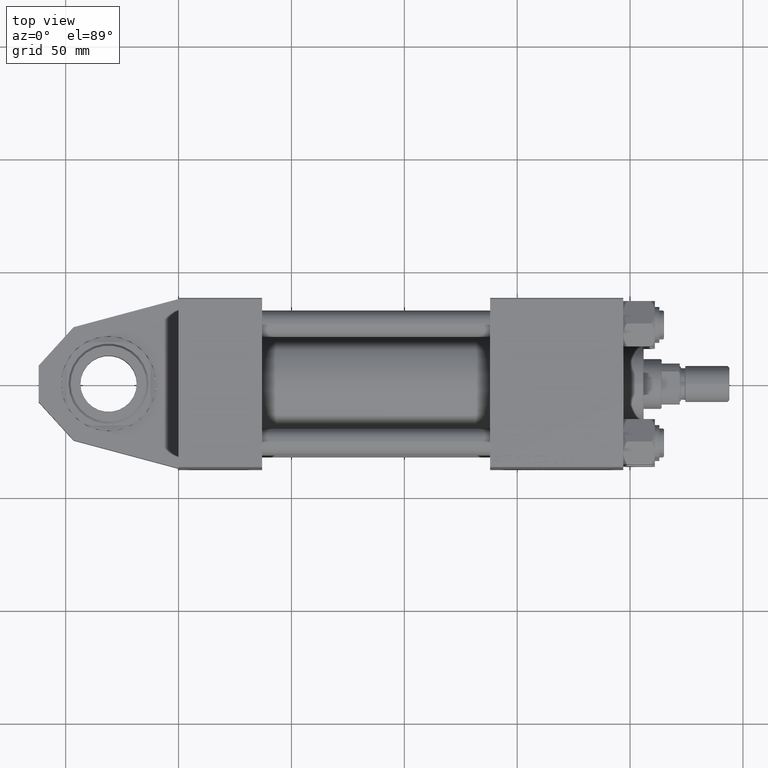
[diagram: clean part render]
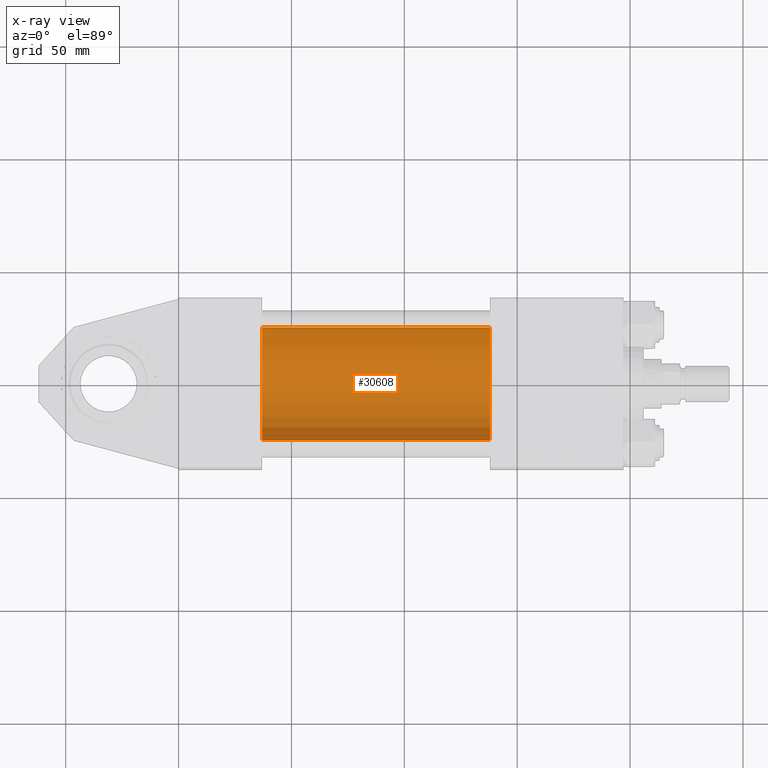
[diagram: x-ray — body ghosted, one internal face saturated and labeled with its STEP entity id]
A machine part, top view, then the same camera in x-ray: the body is ghosted and one INTERNAL B-rep face — a face not visible from any outside direction — is saturated and labeled: STEP entity #30608.
In plain terms, the highlighted cylindrical surface (partial cylindrical patch) has radius 25 mm, axis along (-1, 0, -0).
Its self-contained STEP definition (entity closure, byte-faithful):
#917 = CIRCLE ( 'NONE', #11546, 25.00000000000000000 ) ;
#1388 = CARTESIAN_POINT ( 'NONE',  ( 138.0000000000000000, -2.602085213965210642E-15, 0.000000000000000000 ) ) ;
#3727 = EDGE_CURVE ( 'NONE', #8686, #22374, #16329, .T. ) ;
#4450 = CARTESIAN_POINT ( 'NONE',  ( 138.0000000000000000, -2.602085213965210642E-15, 25.00000000000000000 ) ) ;
#4764 = CARTESIAN_POINT ( 'NONE',  ( 37.00000000000000000, -2.602085213965210642E-15, 25.00000000000000000 ) ) ;
#6232 = CARTESIAN_POINT ( 'NONE',  ( 138.0000000000000000, 4.595317839031724996E-16, -25.00000000000000000 ) ) ;
#8686 = VERTEX_POINT ( 'NONE', #4450 ) ;
#8701 = ORIENTED_EDGE ( 'NONE', *, *, #3727, .F. ) ;
#11144 = EDGE_CURVE ( 'NONE', #14616, #26353, #19718, .T. ) ;
#11546 = AXIS2_PLACEMENT_3D ( 'NONE', #1388, #39305, #36459 ) ;
#11850 = EDGE_CURVE ( 'NONE', #22374, #26353, #23724, .T. ) ;
#13593 = DIRECTION ( 'NONE',  ( -1.000000000000000000, -0.000000000000000000, -0.000000000000000000 ) ) ;
#13673 = EDGE_CURVE ( 'NONE', #8686, #14616, #917, .T. ) ;
#14101 = DIRECTION ( 'NONE',  ( 0.000000000000000000, 0.000000000000000000, 1.000000000000000000 ) ) ;
#14616 = VERTEX_POINT ( 'NONE', #6232 ) ;
#16329 = LINE ( 'NONE', #28602, #45944 ) ;
#19217 = CARTESIAN_POINT ( 'NONE',  ( 138.0000000000000000, 4.595317839031724996E-16, -25.00000000000000000 ) ) ;
#19230 = ORIENTED_EDGE ( 'NONE', *, *, #13673, .T. ) ;
#19718 = LINE ( 'NONE', #19217, #25355 ) ;
#22374 = VERTEX_POINT ( 'NONE', #4764 ) ;
#22613 = AXIS2_PLACEMENT_3D ( 'NONE', #40769, #13593, #14101 ) ;
#23724 = CIRCLE ( 'NONE', #30264, 25.00000000000000000 ) ;
#24186 = DIRECTION ( 'NONE',  ( 0.000000000000000000, 0.000000000000000000, -1.000000000000000000 ) ) ;
#25355 = VECTOR ( 'NONE', #35595, 1000.000000000000000 ) ;
#26353 = VERTEX_POINT ( 'NONE', #35241 ) ;
#28352 = DIRECTION ( 'NONE',  ( -1.000000000000000000, -0.000000000000000000, -0.000000000000000000 ) ) ;
#28602 = CARTESIAN_POINT ( 'NONE',  ( 138.0000000000000000, -2.602085213965210642E-15, 25.00000000000000000 ) ) ;
#30264 = AXIS2_PLACEMENT_3D ( 'NONE', #43427, #36477, #24186 ) ;
#30608 = ADVANCED_FACE ( 'NONE', ( #49219 ), #48717, .F. ) ;
#35241 = CARTESIAN_POINT ( 'NONE',  ( 37.00000000000000000, 4.595317839031724996E-16, -25.00000000000000000 ) ) ;
#35595 = DIRECTION ( 'NONE',  ( -1.000000000000000000, -0.000000000000000000, -0.000000000000000000 ) ) ;
#36459 = DIRECTION ( 'NONE',  ( 0.000000000000000000, 0.000000000000000000, -1.000000000000000000 ) ) ;
#36477 = DIRECTION ( 'NONE',  ( 1.000000000000000000, 0.000000000000000000, 0.000000000000000000 ) ) ;
#39305 = DIRECTION ( 'NONE',  ( 1.000000000000000000, 0.000000000000000000, 0.000000000000000000 ) ) ;
#40769 = CARTESIAN_POINT ( 'NONE',  ( 138.0000000000000000, -2.602085213965210642E-15, 0.000000000000000000 ) ) ;
#42043 = EDGE_LOOP ( 'NONE', ( #19230, #44700, #46156, #8701 ) ) ;
#43427 = CARTESIAN_POINT ( 'NONE',  ( 37.00000000000000000, -2.602085213965210642E-15, 0.000000000000000000 ) ) ;
#44700 = ORIENTED_EDGE ( 'NONE', *, *, #11144, .T. ) ;
#45944 = VECTOR ( 'NONE', #28352, 1000.000000000000000 ) ;
#46156 = ORIENTED_EDGE ( 'NONE', *, *, #11850, .F. ) ;
#48717 = CYLINDRICAL_SURFACE ( 'NONE', #22613, 25.00000000000000000 ) ;
#49219 = FACE_OUTER_BOUND ( 'NONE', #42043, .T. ) ;